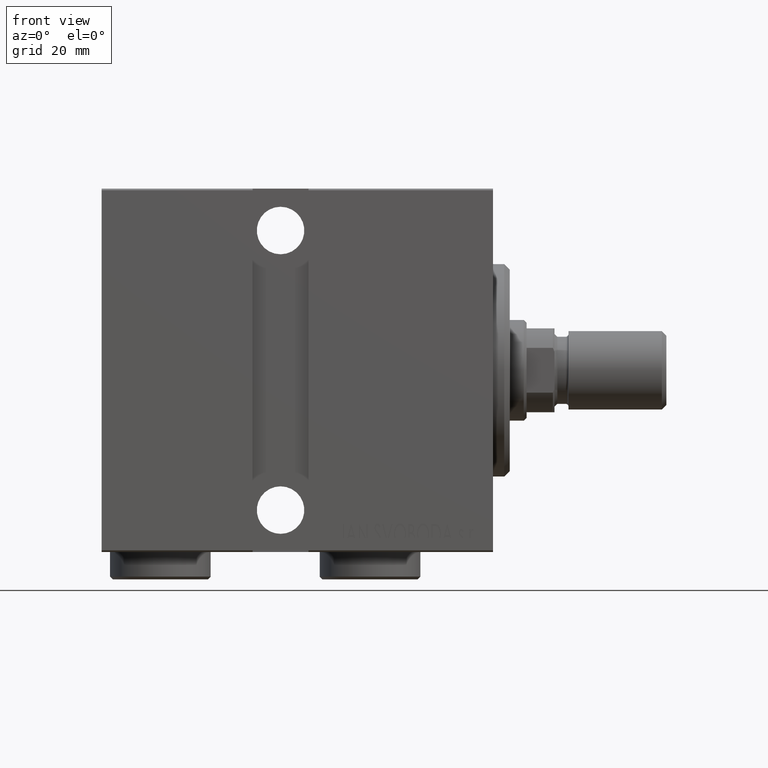
[diagram: clean part render]
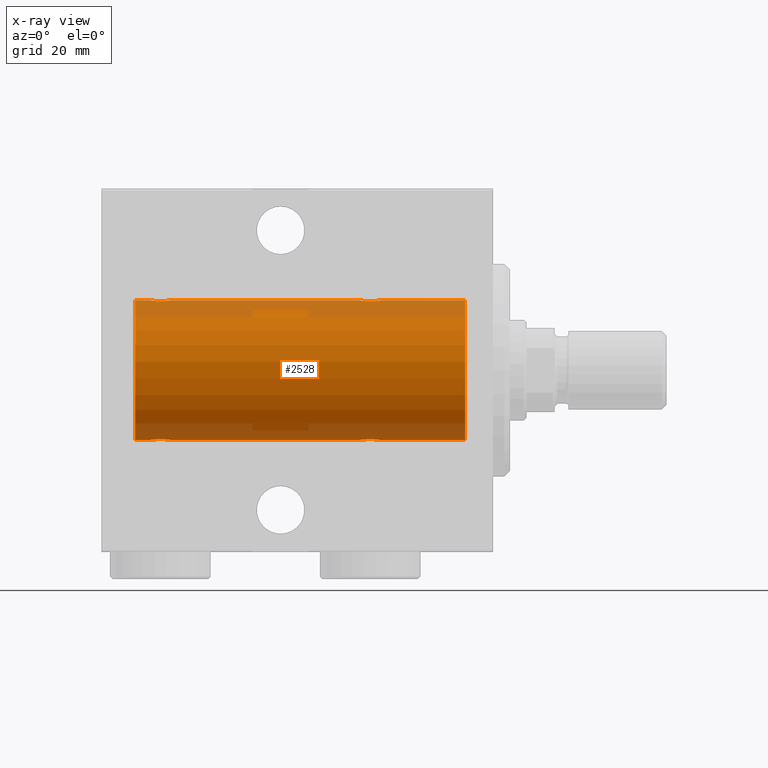
[diagram: x-ray — body ghosted, one internal face saturated and labeled with its STEP entity id]
A machine part, front view, then the same camera in x-ray: the body is ghosted and one INTERNAL B-rep face — a face not visible from any outside direction — is saturated and labeled: STEP entity #2528.
In plain terms, the highlighted cylindrical surface (partial cylindrical patch) has radius 12.5 mm, axis along (1, 0, -0).
Its self-contained STEP definition (entity closure, byte-faithful):
#945 = CARTESIAN_POINT ( 'NONE',  ( 64.00000000000000000, 0.000000000000000000, 12.50000000000000000 ) ) ;
#1016 = CARTESIAN_POINT ( 'NONE',  ( 20.77033506126850426, 1.598680238462369951, -12.39873273758732175 ) ) ;
#1200 = CARTESIAN_POINT ( 'NONE',  ( 59.37007370639736337, 2.000049200055400878, 12.33895470450623222 ) ) ;
#1245 = CARTESIAN_POINT ( 'NONE',  ( 60.01937350851554243, 1.935814255713572019, -12.34922241902462758 ) ) ;
#1332 = EDGE_CURVE ( 'NONE', #15208, #32143, #8369, .T. ) ;
#1464 = CARTESIAN_POINT ( 'NONE',  ( 60.38656313533017084, 1.797558627508995643, -12.37018026341338484 ) ) ;
#1527 = LINE ( 'NONE', #36614, #34040 ) ;
#1886 = CARTESIAN_POINT ( 'NONE',  ( 23.21980790594580313, 1.590288205413975309, -12.39864157855465088 ) ) ;
#2021 = CARTESIAN_POINT ( 'NONE',  ( 24.00000000000000000, -4.527848004210791175E-16, 12.50000000000000000 ) ) ;
#2106 = CARTESIAN_POINT ( 'NONE',  ( 22.52563587170489967, 1.947190906025044299, 12.34781876294798408 ) ) ;
#2330 = CARTESIAN_POINT ( 'NONE',  ( 23.32102833500698225, 1.507394620545640773, -12.40913174964213184 ) ) ;
#2528 = ADVANCED_FACE ( 'NONE', ( #23622 ), #6278, .F. ) ;
#3319 = VERTEX_POINT ( 'NONE', #31772 ) ;
#4153 = CARTESIAN_POINT ( 'NONE',  ( 59.76211806331624388, 1.999901172190677201, 12.33897869807161385 ) ) ;
#4587 = CARTESIAN_POINT ( 'NONE',  ( 58.85584766229707299, 1.897967064543087279, 12.35517291625592229 ) ) ;
#4661 = CIRCLE ( 'NONE', #25525, 12.50000000000000000 ) ;
#4837 = CARTESIAN_POINT ( 'NONE',  ( 20.20257508083844300, 0.8868029758979382171, 12.46909283808506430 ) ) ;
#4854 = CARTESIAN_POINT ( 'NONE',  ( 58.27033506126852558, 1.598680238462363956, -12.39873273758732353 ) ) ;
#5056 = CARTESIAN_POINT ( 'NONE',  ( 20.40963319990594016, 1.219754986802279451, -12.44082361696003503 ) ) ;
#5066 = CARTESIAN_POINT ( 'NONE',  ( 58.49316879552502257, 1.747608771958137241, -12.37764291807175709 ) ) ;
#5279 = CARTESIAN_POINT ( 'NONE',  ( 61.29742491916157121, 0.8868029758979365518, -12.46909283808506430 ) ) ;
#5455 = CARTESIAN_POINT ( 'NONE',  ( 57.50000000000000000, 0.1306394121199370428, 12.50000000000000000 ) ) ;
#5566 = DIRECTION ( 'NONE',  ( 0.000000000000000000, 0.000000000000000000, 1.000000000000000000 ) ) ;
#5715 = CARTESIAN_POINT ( 'NONE',  ( 24.00000000000000000, 1.530808426277417854E-15, -12.50000000000000000 ) ) ;
#5936 = CARTESIAN_POINT ( 'NONE',  ( 22.88656313533016373, 1.797558627508998086, -12.37018026341338839 ) ) ;
#6278 = CYLINDRICAL_SURFACE ( 'NONE', #37179, 12.50000000000000000 ) ;
#6598 = EDGE_CURVE ( 'NONE', #32143, #23648, #14761, .T. ) ;
#6878 = ORIENTED_EDGE ( 'NONE', *, *, #26353, .F. ) ;
#7291 = CARTESIAN_POINT ( 'NONE',  ( 19.99999999999999645, -7.265724481447607133E-23, 12.50000000000000000 ) ) ;
#7733 = B_SPLINE_CURVE_WITH_KNOTS ( 'NONE', 3,
 ( #22618, #25782, #43356, #28943, #22197, #35729, #15008, #18371, #28737, #4854, #5066, #11628, #32117, #35948, #15869, #1245, #15217, #1464, #39976, #18809, #42497, #25352, #42717, #22845, #5279, #11846, #29601, #39106, #18590, #15656 ),
 .UNSPECIFIED., .F., .F.,
 ( 4, 2, 2, 2, 2, 2, 2, 2, 2, 2, 2, 2, 2, 2, 4 ),
 ( 8.524058063799960461E-19, 0.0003914362731607507980, 0.0007828725463215007287, 0.001174308819482250280, 0.001565745092642999723, 0.002348617638964514438, 0.003131490185286029369, 0.003522926458446797027, 0.003914362731607565551, 0.004305799004768333209, 0.004697235277929100866, 0.005088671551089869391, 0.005480107824250637048, 0.005871544097411405573, 0.006262980370572173230 ),
 .UNSPECIFIED. ) ;
#7754 = CARTESIAN_POINT ( 'NONE',  ( 58.49664185700819274, 1.734998657226764163, 12.37922086519035858 ) ) ;
#7769 = EDGE_CURVE ( 'NONE', #3319, #15208, #13636, .T. ) ;
#8006 = CARTESIAN_POINT ( 'NONE',  ( 20.26446744561862801, 1.002494658017155871, -12.46021263690096958 ) ) ;
#8177 = CARTESIAN_POINT ( 'NONE',  ( 64.00000000000000000, 1.530808498934191521E-15, -12.50000000000000000 ) ) ;
#8223 = CARTESIAN_POINT ( 'NONE',  ( 20.26529257602389222, 1.003863686549171019, 12.46009879577771606 ) ) ;
#8351 = EDGE_CURVE ( 'NONE', #11911, #3319, #1527, .T. ) ;
#8369 = LINE ( 'NONE', #945, #24183 ) ;
#8445 = CARTESIAN_POINT ( 'NONE',  ( 20.01301208516349206, 0.2624928479599882847, -12.49789934882883458 ) ) ;
#8873 = CARTESIAN_POINT ( 'NONE',  ( 23.93604351777363348, 0.5184196815546062709, 12.48990118705761532 ) ) ;
#9328 = CARTESIAN_POINT ( 'NONE',  ( 23.93561774521849728, 0.5201193324741352209, -12.48983485452574982 ) ) ;
#9545 = CARTESIAN_POINT ( 'NONE',  ( 23.00335814299181436, 1.734998657226765939, -12.37922086519035325 ) ) ;
#9700 = ORIENTED_EDGE ( 'NONE', *, *, #22783, .F. ) ;
#9973 = DIRECTION ( 'NONE',  ( -1.000000000000000000, 0.000000000000000000, 0.000000000000000000 ) ) ;
#10422 = DIRECTION ( 'NONE',  ( 0.000000000000000000, 0.000000000000000000, 1.000000000000000000 ) ) ;
#10915 = CARTESIAN_POINT ( 'NONE',  ( 61.48698791483653281, 0.2624928479599922815, 12.49789934882883458 ) ) ;
#10947 = CARTESIAN_POINT ( 'NONE',  ( 20.20300788371381273, 0.8876934327478117615, -12.46903010196599304 ) ) ;
#11407 = CARTESIAN_POINT ( 'NONE',  ( 21.47436412829510033, 1.947190906025044077, -12.34781876294798053 ) ) ;
#11628 = CARTESIAN_POINT ( 'NONE',  ( 58.97436412829508612, 1.947190906025040746, -12.34781876294798231 ) ) ;
#11846 = CARTESIAN_POINT ( 'NONE',  ( 61.39773031393659863, 0.6448065707252995660, -12.48394649977301718 ) ) ;
#11911 = VERTEX_POINT ( 'NONE', #36121 ) ;
#12045 = CARTESIAN_POINT ( 'NONE',  ( 23.50601633672791735, 1.322451657002076786, 12.43019346654085311 ) ) ;
#12050 = CARTESIAN_POINT ( 'NONE',  ( 23.58991408680628155, 1.220297236145721609, -12.44076681548080288 ) ) ;
#12473 = CARTESIAN_POINT ( 'NONE',  ( 23.79699211628616240, 0.8876934327478146480, 12.46903010196599304 ) ) ;
#12711 = CARTESIAN_POINT ( 'NONE',  ( 24.00000000000000711, 0.1306394121199392910, -12.50000000000000533 ) ) ;
#13043 = DIRECTION ( 'NONE',  ( -1.000000000000000000, -0.000000000000000000, -0.000000000000000000 ) ) ;
#13240 = CARTESIAN_POINT ( 'NONE',  ( 64.00000000000000000, 0.000000000000000000, 0.000000000000000000 ) ) ;
#13636 = B_SPLINE_CURVE_WITH_KNOTS ( 'NONE', 3,
 ( #41787, #42665, #10915, #21707, #25523, #24647, #22149, #35461, #14513, #35901, #21264, #42008, #4153, #1200, #28250, #24874, #4587, #38623, #7754, #29114, #36552, #19194, #30009, #29778, #37001, #29336, #16279, #22571, #5455, #40384 ),
 .UNSPECIFIED., .F., .F.,
 ( 4, 2, 2, 2, 2, 2, 2, 2, 2, 2, 2, 2, 2, 2, 4 ),
 ( 7.010636526547347862E-19, 0.0003914362731607671695, 0.0007828725463215335800, 0.001174308819482300153, 0.001565745092643066510, 0.002348617638964585128, 0.003131490185286103529, 0.003522926458446862079, 0.003914362731607621063, 0.004305799004768380046, 0.004697235277929138163, 0.005088671551089898014, 0.005480107824250656998, 0.005871544097411415114, 0.006262980370572174098 ),
 .UNSPECIFIED. ) ;
#14248 = VERTEX_POINT ( 'NONE', #18164 ) ;
#14320 = ORIENTED_EDGE ( 'NONE', *, *, #1332, .T. ) ;
#14513 = CARTESIAN_POINT ( 'NONE',  ( 61.00601633672791024, 1.322451657002079006, 12.43019346654084956 ) ) ;
#14739 = CARTESIAN_POINT ( 'NONE',  ( 4.999999999999997335, 0.000000000000000000, 12.50000000000000000 ) ) ;
#14761 = B_SPLINE_CURVE_WITH_KNOTS ( 'NONE', 3,
 ( #15421, #22601, #15200, #8873, #36357, #12473, #25335, #19223, #12045, #22825, #21962, #2106, #35715, #39311, #29581, #22181, #39091, #43339, #19451, #26206, #14993, #18791, #28929, #8223, #4837, #35935, #42698, #29143, #32534, #42916 ),
 .UNSPECIFIED., .F., .F.,
 ( 4, 2, 2, 2, 2, 2, 2, 2, 2, 2, 2, 2, 2, 2, 4 ),
 ( 4.399147420600248434E-19, 0.0003914362731607583874, 0.0007828725463215163412, 0.001174308819482274349, 0.001565745092643032249, 0.002348617638964548265, 0.003131490185286064497, 0.003522926458446828252, 0.003914362731607592440, 0.004305799004768355760, 0.004697235277929119081, 0.005088671551089882401, 0.005480107824250645722, 0.005871544097411409910, 0.006262980370572172363 ),
 .UNSPECIFIED. ) ;
#14946 = DIRECTION ( 'NONE',  ( -1.000000000000000000, -0.000000000000000000, -0.000000000000000000 ) ) ;
#14993 = CARTESIAN_POINT ( 'NONE',  ( 20.67897166499301775, 1.507394620545639441, 12.40913174964213361 ) ) ;
#15008 = CARTESIAN_POINT ( 'NONE',  ( 57.76446744561862801, 1.002494658017153872, -12.46021263690097136 ) ) ;
#15200 = CARTESIAN_POINT ( 'NONE',  ( 23.98698791483650794, 0.2624928479599913378, 12.49789934882883458 ) ) ;
#15208 = VERTEX_POINT ( 'NONE', #22233 ) ;
#15217 = CARTESIAN_POINT ( 'NONE',  ( 60.14415233770295544, 1.897967064543087723, -12.35517291625591874 ) ) ;
#15421 = CARTESIAN_POINT ( 'NONE',  ( 24.00000000000000000, -4.527848004210791175E-16, 12.50000000000000000 ) ) ;
#15638 = ORIENTED_EDGE ( 'NONE', *, *, #43472, .T. ) ;
#15656 = CARTESIAN_POINT ( 'NONE',  ( 61.50000000000000711, 1.530808426270318106E-15, -12.50000000000000000 ) ) ;
#15859 = CARTESIAN_POINT ( 'NONE',  ( 22.12992629360264729, 2.000049200055402210, -12.33895470450623044 ) ) ;
#15869 = CARTESIAN_POINT ( 'NONE',  ( 59.76269462454598624, 1.986986967296537232, -12.34109209020652465 ) ) ;
#16279 = CARTESIAN_POINT ( 'NONE',  ( 57.56438225478149917, 0.5201193324741324453, 12.48983485452574982 ) ) ;
#17233 = EDGE_LOOP ( 'NONE', ( #20617, #6878, #34871, #29689, #14320, #20535, #15638, #40193, #9700, #39304, #26049, #27599 ) ) ;
#17307 = CARTESIAN_POINT ( 'NONE',  ( 64.00000000000000000, 1.530808498934191521E-15, -12.50000000000000000 ) ) ;
#17682 = EDGE_CURVE ( 'NONE', #27531, #14248, #30704, .T. ) ;
#18141 = CARTESIAN_POINT ( 'NONE',  ( 19.99999999999999645, 0.1323736289504319763, -12.50000000000000000 ) ) ;
#18164 = CARTESIAN_POINT ( 'NONE',  ( 24.00000000000000000, 1.530808426277417854E-15, -12.50000000000000000 ) ) ;
#18371 = CARTESIAN_POINT ( 'NONE',  ( 57.90963319990594727, 1.219754986802277896, -12.44082361696003680 ) ) ;
#18590 = CARTESIAN_POINT ( 'NONE',  ( 61.50000000000001421, 0.1306394121199392355, -12.50000000000000178 ) ) ;
#18786 = EDGE_CURVE ( 'NONE', #40616, #29533, #32056, .T. ) ;
#18791 = CARTESIAN_POINT ( 'NONE',  ( 20.49266449635678100, 1.321095788880537247, 12.43034574091277911 ) ) ;
#18809 = CARTESIAN_POINT ( 'NONE',  ( 60.71980790594580668, 1.590288205413971090, -12.39864157855465088 ) ) ;
#18948 = VERTEX_POINT ( 'NONE', #26161 ) ;
#19194 = CARTESIAN_POINT ( 'NONE',  ( 57.99266449635677390, 1.321095788880536581, 12.43034574091277733 ) ) ;
#19223 = CARTESIAN_POINT ( 'NONE',  ( 23.59036680009404918, 1.219754986802281005, 12.44082361696003325 ) ) ;
#19229 = CARTESIAN_POINT ( 'NONE',  ( 23.50733550364322255, 1.321095788880538136, -12.43034574091277911 ) ) ;
#19451 = CARTESIAN_POINT ( 'NONE',  ( 20.99664185700817498, 1.734998657226762386, 12.37922086519035680 ) ) ;
#20535 = ORIENTED_EDGE ( 'NONE', *, *, #6598, .T. ) ;
#20617 = ORIENTED_EDGE ( 'NONE', *, *, #18786, .F. ) ;
#20722 = EDGE_CURVE ( 'NONE', #18948, #14248, #27897, .T. ) ;
#21132 = DIRECTION ( 'NONE',  ( -1.000000000000000000, -0.000000000000000000, -0.000000000000000000 ) ) ;
#21264 = CARTESIAN_POINT ( 'NONE',  ( 60.50683120447499164, 1.747608771958137908, 12.37764291807175354 ) ) ;
#21707 = CARTESIAN_POINT ( 'NONE',  ( 61.43604351777364059, 0.5184196815546071591, 12.48990118705761354 ) ) ;
#21833 = LINE ( 'NONE', #43389, #35194 ) ;
#21962 = CARTESIAN_POINT ( 'NONE',  ( 23.00683120447499519, 1.747608771958141016, 12.37764291807175887 ) ) ;
#22149 = CARTESIAN_POINT ( 'NONE',  ( 61.23553255438137910, 1.002494658017159423, 12.46021263690096958 ) ) ;
#22181 = CARTESIAN_POINT ( 'NONE',  ( 21.48062649148445402, 1.935814255713573351, 12.34922241902463114 ) ) ;
#22185 = CARTESIAN_POINT ( 'NONE',  ( 20.06395648222636652, 0.5184196815546032733, -12.48990118705761532 ) ) ;
#22197 = CARTESIAN_POINT ( 'NONE',  ( 57.60252270298195043, 0.6455696738844883820, -12.48390768591463384 ) ) ;
#22233 = CARTESIAN_POINT ( 'NONE',  ( 57.50000000000000000, -7.266434456262306043E-23, 12.50000000000000000 ) ) ;
#22571 = CARTESIAN_POINT ( 'NONE',  ( 57.51309615233746086, 0.2633501011236094591, 12.49788564268283864 ) ) ;
#22601 = CARTESIAN_POINT ( 'NONE',  ( 24.00000000000000355, 0.1323736289504353625, 12.50000000000000000 ) ) ;
#22614 = AXIS2_PLACEMENT_3D ( 'NONE', #13240, #40496, #5566 ) ;
#22618 = CARTESIAN_POINT ( 'NONE',  ( 57.50000000000000000, -7.533308568696040923E-15, -12.50000000000000000 ) ) ;
#22783 = EDGE_CURVE ( 'NONE', #27531, #27309, #41036, .T. ) ;
#22825 = CARTESIAN_POINT ( 'NONE',  ( 23.22966493873148863, 1.598680238462369507, 12.39873273758732353 ) ) ;
#22845 = CARTESIAN_POINT ( 'NONE',  ( 61.23470742397612554, 1.003863686549173462, -12.46009879577771429 ) ) ;
#22877 = DIRECTION ( 'NONE',  ( -1.000000000000000000, -0.000000000000000000, -0.000000000000000000 ) ) ;
#22940 = DIRECTION ( 'NONE',  ( 0.000000000000000000, 0.000000000000000000, 1.000000000000000000 ) ) ;
#23622 = FACE_OUTER_BOUND ( 'NONE', #17233, .T. ) ;
#23648 = VERTEX_POINT ( 'NONE', #7291 ) ;
#24183 = VECTOR ( 'NONE', #39458, 1000.000000000000000 ) ;
#24491 = VERTEX_POINT ( 'NONE', #14739 ) ;
#24647 = CARTESIAN_POINT ( 'NONE',  ( 61.29699211628619793, 0.8876934327478148701, 12.46903010196599659 ) ) ;
#24702 = VECTOR ( 'NONE', #26378, 1000.000000000000000 ) ;
#24874 = CARTESIAN_POINT ( 'NONE',  ( 58.98062649148444336, 1.935814255713572241, 12.34922241902463291 ) ) ;
#25335 = CARTESIAN_POINT ( 'NONE',  ( 23.73553255438136134, 1.002494658017157647, 12.46021263690096958 ) ) ;
#25352 = CARTESIAN_POINT ( 'NONE',  ( 61.00733550364321900, 1.321095788880535915, -12.43034574091278088 ) ) ;
#25523 = CARTESIAN_POINT ( 'NONE',  ( 61.39747729701806378, 0.6455696738844931559, 12.48390768591463384 ) ) ;
#25525 = AXIS2_PLACEMENT_3D ( 'NONE', #30459, #9973, #10422 ) ;
#25772 = CARTESIAN_POINT ( 'NONE',  ( 23.79742491916155700, 0.8868029758979399935, -12.46909283808506430 ) ) ;
#25782 = CARTESIAN_POINT ( 'NONE',  ( 57.50000000000002132, 0.1323736289504287567, -12.50000000000000178 ) ) ;
#26049 = ORIENTED_EDGE ( 'NONE', *, *, #20722, .F. ) ;
#26161 = CARTESIAN_POINT ( 'NONE',  ( 57.50000000000000000, -7.533308568696040923E-15, -12.50000000000000000 ) ) ;
#26206 = CARTESIAN_POINT ( 'NONE',  ( 20.78019209405420042, 1.590288205413970646, 12.39864157855465088 ) ) ;
#26353 = EDGE_CURVE ( 'NONE', #11911, #40616, #43474, .T. ) ;
#26354 = CARTESIAN_POINT ( 'NONE',  ( 61.50000000000000711, 1.530808426270318106E-15, -12.50000000000000000 ) ) ;
#26378 = DIRECTION ( 'NONE',  ( -1.000000000000000000, -0.000000000000000000, -0.000000000000000000 ) ) ;
#27192 = CARTESIAN_POINT ( 'NONE',  ( 4.999999999999997335, 1.530808498934191521E-15, -12.50000000000000000 ) ) ;
#27309 = VERTEX_POINT ( 'NONE', #27192 ) ;
#27531 = VERTEX_POINT ( 'NONE', #36395 ) ;
#27599 = ORIENTED_EDGE ( 'NONE', *, *, #34322, .T. ) ;
#27786 = CARTESIAN_POINT ( 'NONE',  ( 64.00000000000000000, 1.530808498934191521E-15, -12.50000000000000000 ) ) ;
#27897 = LINE ( 'NONE', #17307, #31927 ) ;
#27946 = EDGE_CURVE ( 'NONE', #24491, #27309, #4661, .T. ) ;
#28250 = CARTESIAN_POINT ( 'NONE',  ( 59.23730537545403507, 1.986986967296537676, 12.34109209020652820 ) ) ;
#28737 = CARTESIAN_POINT ( 'NONE',  ( 57.99398366327209686, 1.322451657002070347, -12.43019346654085489 ) ) ;
#28929 = CARTESIAN_POINT ( 'NONE',  ( 20.41008591319371490, 1.220297236145720277, 12.44076681548080288 ) ) ;
#28943 = CARTESIAN_POINT ( 'NONE',  ( 57.56395648222637362, 0.5184196815546008308, -12.48990118705761354 ) ) ;
#28988 = VECTOR ( 'NONE', #14946, 1000.000000000000000 ) ;
#29114 = CARTESIAN_POINT ( 'NONE',  ( 58.28019209405419332, 1.590288205413972866, 12.39864157855464732 ) ) ;
#29143 = CARTESIAN_POINT ( 'NONE',  ( 20.01309615233744310, 0.2633501011236105693, 12.49788564268283864 ) ) ;
#29149 = CARTESIAN_POINT ( 'NONE',  ( 23.98690384766256400, 0.2633501011236120681, -12.49788564268284041 ) ) ;
#29336 = CARTESIAN_POINT ( 'NONE',  ( 57.60226968606340847, 0.6448065707253002321, 12.48394649977301540 ) ) ;
#29373 = CARTESIAN_POINT ( 'NONE',  ( 22.26269462454597914, 1.986986967296540119, -12.34109209020652465 ) ) ;
#29533 = VERTEX_POINT ( 'NONE', #26354 ) ;
#29581 = CARTESIAN_POINT ( 'NONE',  ( 21.73730537545402086, 1.986986967296538564, 12.34109209020652465 ) ) ;
#29601 = CARTESIAN_POINT ( 'NONE',  ( 61.43561774521850083, 0.5201193324741332225, -12.48983485452574982 ) ) ;
#29689 = ORIENTED_EDGE ( 'NONE', *, *, #7769, .T. ) ;
#29778 = CARTESIAN_POINT ( 'NONE',  ( 57.76529257602388157, 1.003863686549167022, 12.46009879577771429 ) ) ;
#30009 = CARTESIAN_POINT ( 'NONE',  ( 57.91008591319372556, 1.220297236145716946, 12.44076681548080288 ) ) ;
#30045 = CARTESIAN_POINT ( 'NONE',  ( 23.73470742397611843, 1.003863686549172352, -12.46009879577771606 ) ) ;
#30459 = CARTESIAN_POINT ( 'NONE',  ( 4.999999999999997335, 0.000000000000000000, 0.000000000000000000 ) ) ;
#30704 = B_SPLINE_CURVE_WITH_KNOTS ( 'NONE', 3,
 ( #42703, #18141, #8445, #22185, #41820, #10947, #8006, #5056, #31881, #1016, #42270, #11407, #35498, #15859, #29373, #32765, #37035, #5936, #9545, #1886, #2330, #19229, #12050, #30045, #25772, #39965, #9328, #29149, #12711, #5715 ),
 .UNSPECIFIED., .F., .F.,
 ( 4, 2, 2, 2, 2, 2, 2, 2, 2, 2, 2, 2, 2, 2, 4 ),
 ( 3.611342868676865251E-19, 0.0003914362731607586585, 0.0007828725463215168833, 0.001174308819482275217, 0.001565745092643033550, 0.002348617638964549999, 0.003131490185286066666, 0.003522926458446830420, 0.003914362731607594174, 0.004305799004768357495, 0.004697235277929121683, 0.005088671551089885003, 0.005480107824250649191, 0.005871544097411412512, 0.006262980370572176700 ),
 .UNSPECIFIED. ) ;
#31772 = CARTESIAN_POINT ( 'NONE',  ( 61.50000000000000711, -7.215738317004035941E-16, 12.50000000000000000 ) ) ;
#31881 = CARTESIAN_POINT ( 'NONE',  ( 20.49398366327207910, 1.322451657002076120, -12.43019346654084956 ) ) ;
#31927 = VECTOR ( 'NONE', #21132, 1000.000000000000000 ) ;
#32056 = LINE ( 'NONE', #8177, #28988 ) ;
#32117 = CARTESIAN_POINT ( 'NONE',  ( 59.23788193668374902, 1.999901172190674981, -12.33897869807161207 ) ) ;
#32143 = VERTEX_POINT ( 'NONE', #2021 ) ;
#32534 = CARTESIAN_POINT ( 'NONE',  ( 20.00000000000000000, 0.1306394121199368485, 12.50000000000000000 ) ) ;
#32765 = CARTESIAN_POINT ( 'NONE',  ( 22.51937350851555308, 1.935814255713574905, -12.34922241902463114 ) ) ;
#33604 = CARTESIAN_POINT ( 'NONE',  ( 64.00000000000000000, 1.530808498934191521E-15, -12.50000000000000000 ) ) ;
#33770 = CARTESIAN_POINT ( 'NONE',  ( 64.00000000000000000, 0.000000000000000000, 0.000000000000000000 ) ) ;
#34040 = VECTOR ( 'NONE', #43831, 1000.000000000000000 ) ;
#34322 = EDGE_CURVE ( 'NONE', #18948, #29533, #7733, .T. ) ;
#34871 = ORIENTED_EDGE ( 'NONE', *, *, #8351, .T. ) ;
#35194 = VECTOR ( 'NONE', #22877, 1000.000000000000000 ) ;
#35461 = CARTESIAN_POINT ( 'NONE',  ( 61.09036680009405984, 1.219754986802282115, 12.44082361696003147 ) ) ;
#35498 = CARTESIAN_POINT ( 'NONE',  ( 21.73788193668374902, 1.999901172190678533, -12.33897869807161385 ) ) ;
#35715 = CARTESIAN_POINT ( 'NONE',  ( 22.26211806331624743, 1.999901172190676757, 12.33897869807161563 ) ) ;
#35729 = CARTESIAN_POINT ( 'NONE',  ( 57.70300788371382339, 0.8876934327478099851, -12.46903010196599659 ) ) ;
#35901 = CARTESIAN_POINT ( 'NONE',  ( 60.72966493873149574, 1.598680238462370617, 12.39873273758732353 ) ) ;
#35935 = CARTESIAN_POINT ( 'NONE',  ( 20.10226968606341558, 0.6448065707253003431, 12.48394649977302073 ) ) ;
#35948 = CARTESIAN_POINT ( 'NONE',  ( 59.62992629360267216, 2.000049200055399545, -12.33895470450622867 ) ) ;
#36121 = CARTESIAN_POINT ( 'NONE',  ( 64.00000000000000000, 0.000000000000000000, 12.50000000000000000 ) ) ;
#36357 = CARTESIAN_POINT ( 'NONE',  ( 23.89747729701804602, 0.6455696738844928229, 12.48390768591463207 ) ) ;
#36395 = CARTESIAN_POINT ( 'NONE',  ( 19.99999999999999645, -3.966047509268588167E-15, -12.50000000000000000 ) ) ;
#36552 = CARTESIAN_POINT ( 'NONE',  ( 58.17897166499302841, 1.507394620545639219, 12.40913174964213539 ) ) ;
#36614 = CARTESIAN_POINT ( 'NONE',  ( 64.00000000000000000, 0.000000000000000000, 12.50000000000000000 ) ) ;
#37001 = CARTESIAN_POINT ( 'NONE',  ( 57.70257508083844300, 0.8868029758979379951, 12.46909283808506430 ) ) ;
#37035 = CARTESIAN_POINT ( 'NONE',  ( 22.64415233770293412, 1.897967064543090165, -12.35517291625592051 ) ) ;
#37179 = AXIS2_PLACEMENT_3D ( 'NONE', #33770, #13043, #22940 ) ;
#38623 = CARTESIAN_POINT ( 'NONE',  ( 58.61343686466983627, 1.797558627508994089, 12.37018026341338484 ) ) ;
#39091 = CARTESIAN_POINT ( 'NONE',  ( 21.35584766229706588, 1.897967064543088833, 12.35517291625592051 ) ) ;
#39106 = CARTESIAN_POINT ( 'NONE',  ( 61.48690384766256045, 0.2633501011236106804, -12.49788564268283864 ) ) ;
#39304 = ORIENTED_EDGE ( 'NONE', *, *, #17682, .T. ) ;
#39311 = CARTESIAN_POINT ( 'NONE',  ( 21.87007370639734916, 2.000049200055400878, 12.33895470450623044 ) ) ;
#39458 = DIRECTION ( 'NONE',  ( -1.000000000000000000, -0.000000000000000000, -0.000000000000000000 ) ) ;
#39965 = CARTESIAN_POINT ( 'NONE',  ( 23.89773031393658087, 0.6448065707253023415, -12.48394649977302073 ) ) ;
#39976 = CARTESIAN_POINT ( 'NONE',  ( 60.50335814299182857, 1.734998657226762608, -12.37922086519035680 ) ) ;
#40193 = ORIENTED_EDGE ( 'NONE', *, *, #27946, .T. ) ;
#40384 = CARTESIAN_POINT ( 'NONE',  ( 57.50000000000000000, -7.266434456262306043E-23, 12.50000000000000000 ) ) ;
#40496 = DIRECTION ( 'NONE',  ( -1.000000000000000000, 0.000000000000000000, 0.000000000000000000 ) ) ;
#40616 = VERTEX_POINT ( 'NONE', #27786 ) ;
#41036 = LINE ( 'NONE', #33604, #24702 ) ;
#41787 = CARTESIAN_POINT ( 'NONE',  ( 61.50000000000000711, -7.215738317004035941E-16, 12.50000000000000000 ) ) ;
#41820 = CARTESIAN_POINT ( 'NONE',  ( 20.10252270298193622, 0.6455696738844897142, -12.48390768591463207 ) ) ;
#42008 = CARTESIAN_POINT ( 'NONE',  ( 60.02563587170491388, 1.947190906025042967, 12.34781876294798408 ) ) ;
#42270 = CARTESIAN_POINT ( 'NONE',  ( 20.99316879552500481, 1.747608771958139906, -12.37764291807175354 ) ) ;
#42497 = CARTESIAN_POINT ( 'NONE',  ( 60.82102833500698580, 1.507394620545638331, -12.40913174964213184 ) ) ;
#42665 = CARTESIAN_POINT ( 'NONE',  ( 61.50000000000000711, 0.1323736289504353347, 12.50000000000000178 ) ) ;
#42698 = CARTESIAN_POINT ( 'NONE',  ( 20.06438225478150628, 0.5201193324741335555, 12.48983485452575337 ) ) ;
#42703 = CARTESIAN_POINT ( 'NONE',  ( 19.99999999999999645, -3.966047509268588167E-15, -12.50000000000000000 ) ) ;
#42717 = CARTESIAN_POINT ( 'NONE',  ( 61.08991408680628155, 1.220297236145721387, -12.44076681548080110 ) ) ;
#42916 = CARTESIAN_POINT ( 'NONE',  ( 19.99999999999999645, -7.265724481447607133E-23, 12.50000000000000000 ) ) ;
#43339 = CARTESIAN_POINT ( 'NONE',  ( 21.11343686466984693, 1.797558627508996532, 12.37018026341339194 ) ) ;
#43356 = CARTESIAN_POINT ( 'NONE',  ( 57.51301208516348851, 0.2624928479599860642, -12.49789934882883458 ) ) ;
#43389 = CARTESIAN_POINT ( 'NONE',  ( 64.00000000000000000, 0.000000000000000000, 12.50000000000000000 ) ) ;
#43472 = EDGE_CURVE ( 'NONE', #23648, #24491, #21833, .T. ) ;
#43474 = CIRCLE ( 'NONE', #22614, 12.50000000000000000 ) ;
#43831 = DIRECTION ( 'NONE',  ( -1.000000000000000000, -0.000000000000000000, -0.000000000000000000 ) ) ;